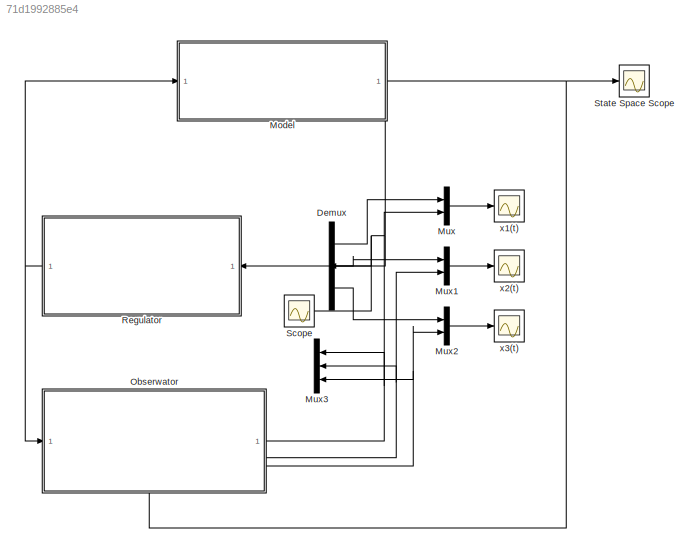
MODEL slx_71d1992885e4
KIND model
CONFIG AbsTol = auto
CONFIG EnableMultiTasking = off
CONFIG FixedStep = auto
CONFIG InitFcn = simulation_setup
CONFIG MaxStep = auto
CONFIG MinStep = auto
CONFIG RelTol = 1e-3
CONFIG SampleTimeConstraint = Unconstrained
CONFIG SolverName = VariableStepAuto
CONFIG StartTime = 0.0
CONFIG StopTime = t_fin
BLOCK [Demux] Demux
  Outputs = 3
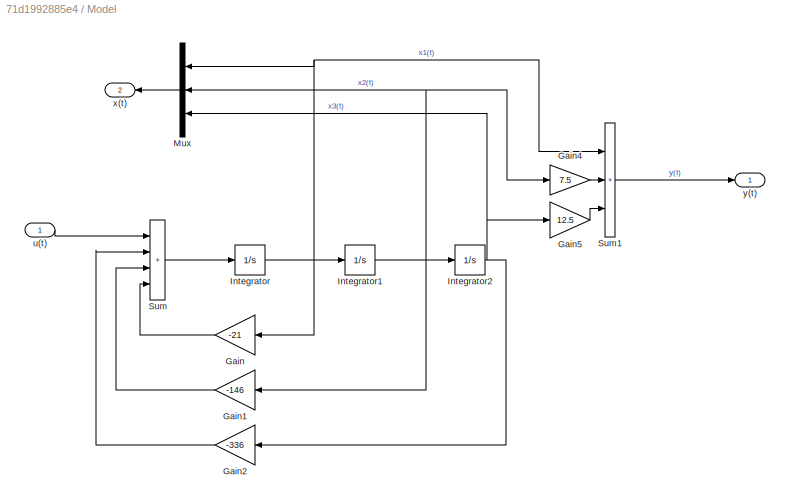
BLOCK [SubSystem] Model
  NameLocation = top
  PortSchema = {"entries":[{"content":{"sides":[{"content":{"connectorIds":["In1"]},"type":"ConnectorPlacement.EquallySpacedRectSide","uuid":"005622f6-1dbe-4fa8-b059-9458e8899b96"},{"content":{"connectorIds":["Out1"],"side":"RIGHT"},"type":"ConnectorPlacement.EquallySpacedRectSide","uuid":"7350b0ed-336f-40bc-b296-6ad5a9a87142"},{"content":{"side":"TOP"},"type":"ConnectorPlacement.EquallySpacedRectSide","uuid":"4...<+372ch>
BLOCK [Gain] Model/Gain
  Gain = -21
  NameLocation = top
BLOCK [Gain] Model/Gain1
  Gain = -146
  NameLocation = top
BLOCK [Gain] Model/Gain2
  Gain = -336
  NameLocation = top
BLOCK [Gain] Model/Gain4
  Gain = 7.5
BLOCK [Gain] Model/Gain5
  Gain = 12.5
BLOCK [Integrator] Model/Integrator
  InitialCondition = x_0(1)
BLOCK [Integrator] Model/Integrator1
  InitialCondition = x_0(2)
BLOCK [Integrator] Model/Integrator2
  InitialCondition = x_0(3)
BLOCK [Mux] Model/Mux
  DisplayOption = bar
  Inputs = 3
  NameLocation = top
BLOCK [Sum] Model/Sum
  IconShape = rectangular
  Inputs = ++++
BLOCK [Sum] Model/Sum1
  IconShape = rectangular
  Inputs = +++
BLOCK [Inport] Model/u(t)
BLOCK [Outport] Model/x(t)
  NameLocation = top
  Port = 2
BLOCK [Outport] Model/y(t)
BLOCK [Mux] Mux
  DisplayOption = bar
  Inputs = 2
BLOCK [Mux] Mux1
  DisplayOption = bar
  Inputs = 2
BLOCK [Mux] Mux2
  DisplayOption = bar
  Inputs = 2
BLOCK [Mux] Mux3
  DisplayOption = bar
  Inputs = 3
  NameLocation = top
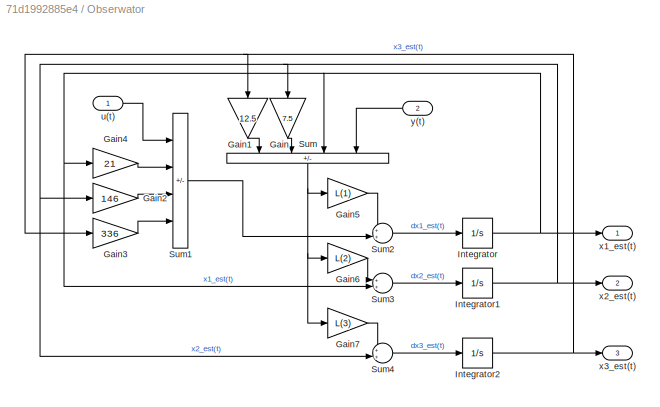
BLOCK [SubSystem] Obserwator
  PortSchema = {"entries":[{"content":{"sides":[{"content":{"connectorIds":["In1"]},"type":"ConnectorPlacement.EquallySpacedRectSide","uuid":"9b2ff53d-de87-4ad2-b26c-b465d32b1385"},{"content":{"connectorIds":["Out1","Out2","Out3"],"side":"RIGHT"},"type":"ConnectorPlacement.EquallySpacedRectSide","uuid":"d6ff340c-c8c1-46fc-9c57-2adcc79a8e31"},{"content":{"side":"TOP"},"type":"ConnectorPlacement.EquallySpacedRectS...<+385ch>
BLOCK [Gain] Obserwator/Gain
  Gain = 7.5
  NameLocation = left
BLOCK [Gain] Obserwator/Gain1
  Gain = 12.5
  NameLocation = left
BLOCK [Gain] Obserwator/Gain2
  Gain = 146
BLOCK [Gain] Obserwator/Gain3
  Gain = 336
BLOCK [Gain] Obserwator/Gain4
  Gain = 21
BLOCK [Gain] Obserwator/Gain5
  Gain = L(1)
BLOCK [Gain] Obserwator/Gain6
  Gain = L(2)
BLOCK [Gain] Obserwator/Gain7
  Gain = L(3)
BLOCK [Integrator] Obserwator/Integrator
  InitialCondition = xo_0(1)
BLOCK [Integrator] Obserwator/Integrator1
  InitialCondition = xo_0(2)
BLOCK [Integrator] Obserwator/Integrator2
  InitialCondition = xo_0(3)
BLOCK [Sum] Obserwator/Sum
  IconShape = rectangular
  Inputs = ---+
  NameLocation = left
BLOCK [Sum] Obserwator/Sum1
  IconShape = rectangular
  Inputs = +---
BLOCK [Sum] Obserwator/Sum2
  Inputs = ++|
BLOCK [Sum] Obserwator/Sum3
  Inputs = ++|
BLOCK [Sum] Obserwator/Sum4
  Inputs = ++|
BLOCK [Inport] Obserwator/u(t)
BLOCK [Outport] Obserwator/x1_est(t)
BLOCK [Outport] Obserwator/x2_est(t)
  Port = 2
BLOCK [Outport] Obserwator/x3_est(t)
  Port = 3
BLOCK [Inport] Obserwator/y(t)
  Port = 2
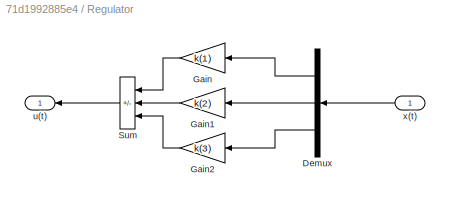
BLOCK [SubSystem] Regulator
  NameLocation = top
BLOCK [Demux] Regulator/Demux
  NameLocation = top
  Outputs = 3
BLOCK [Gain] Regulator/Gain
  Gain = k(1)
  NameLocation = top
BLOCK [Gain] Regulator/Gain1
  Gain = k(2)
  NameLocation = top
BLOCK [Gain] Regulator/Gain2
  Gain = k(3)
  NameLocation = top
BLOCK [Sum] Regulator/Sum
  IconShape = rectangular
  Inputs = ---
  NameLocation = top
BLOCK [Outport] Regulator/u(t)
  NameLocation = top
BLOCK [Inport] Regulator/x(t)
  NameLocation = top
BLOCK [Scope] Scope
  Floating = off
  NumInputPorts = 1
  ScopeSpecificationString = Simulink.scopes.TimeScopeBlockCfg('CurrentConfiguration', extmgr.ConfigurationSet(extmgr.Configuration('Core','General UI',true),extmgr.Configuration('Core','Source UI',true),extmgr.Configuration('Sources','WiredSimulink',true,'DataLoggingVariableName','ScopeData1'),extmgr.Configuration('Visuals','Time Domain',true,'SerializedDisplays',{struct('MinYLimReal','-89.83061','MaxYLimReal','42.82765','YL...<+1427ch>
BLOCK [Scope] State Space Scope
  Floating = off
  NumInputPorts = 1
  ScopeSpecificationString = Simulink.scopes.TimeScopeBlockCfg('CurrentConfiguration', extmgr.ConfigurationSet(extmgr.Configuration('Core','General UI',true),extmgr.Configuration('Core','Source UI',true),extmgr.Configuration('Sources','WiredSimulink',true,'DataLoggingVariableName','ScopeData1'),extmgr.Configuration('Visuals','Time Domain',true,'SerializedDisplays',{struct('MinYLimReal','-123.24384','MaxYLimReal','72.03898','Y...<+1409ch>
BLOCK [Scope] x1(t)
  Floating = off
  NumInputPorts = 1
  ScopeSpecificationString = Simulink.scopes.TimeScopeBlockCfg('CurrentConfiguration', extmgr.ConfigurationSet(extmgr.Configuration('Core','General UI',true),extmgr.Configuration('Core','Source UI',true),extmgr.Configuration('Sources','WiredSimulink',true,'DataLoggingVariableName','ScopeData1'),extmgr.Configuration('Visuals','Time Domain',true,'SerializedDisplays',{struct('MinYLimReal','-5.11588','MaxYLimReal','6.96922','YLab...<+1466ch>
BLOCK [Scope] x2(t)
  Floating = off
  NumInputPorts = 1
  ScopeSpecificationString = Simulink.scopes.TimeScopeBlockCfg('CurrentConfiguration', extmgr.ConfigurationSet(extmgr.Configuration('Core','General UI',true),extmgr.Configuration('Core','Source UI',true),extmgr.Configuration('Sources','WiredSimulink',true,'DataLoggingVariableName','ScopeData2'),extmgr.Configuration('Visuals','Time Domain',true,'SerializedDisplays',{struct('MinYLimReal','-1343.20355','MaxYLimReal','1160.47057'...<+1489ch>
BLOCK [Scope] x3(t)
  Floating = off
  NumInputPorts = 1
  ScopeSpecificationString = Simulink.scopes.TimeScopeBlockCfg('CurrentConfiguration', extmgr.ConfigurationSet(extmgr.Configuration('Core','General UI',true),extmgr.Configuration('Core','Source UI',true),extmgr.Configuration('Sources','WiredSimulink',true,'DataLoggingVariableName','ScopeData3'),extmgr.Configuration('Visuals','Time Domain',true,'SerializedDisplays',{struct('MinYLimReal','-221.39129','MaxYLimReal','268.44509','...<+1433ch>
LINE Demux:1 -> Mux:1
LINE Demux:2 -> Mux1:1
LINE Demux:3 -> Mux2:1
LINE Model/Gain1:1 -> Model/Sum:3
LINE Model/Gain2:1 -> Model/Sum:2
LINE Model/Gain4:1 -> Model/Sum1:2
LINE Model/Gain5:1 -> Model/Sum1:3
LINE Model/Gain:1 -> Model/Sum:4
NET Model/Integrator1:1 -> Model/Gain1:1, Model/Gain4:1, Model/Integrator2:1, Model/Mux:2
NET Model/Integrator2:1 -> Model/Gain2:1, Model/Gain5:1, Model/Mux:3
NET Model/Integrator:1 -> Model/Gain:1, Model/Integrator1:1, Model/Mux:1, Model/Sum1:1
LINE Model/Mux:1 -> Model/x(t):1
LINE Model/Sum1:1 -> Model/y(t):1
LINE Model/Sum:1 -> Model/Integrator:1
LINE Model/u(t):1 -> Model/Sum:1
NET Model:1 -> Obserwator:2, State Space Scope:1
NET Model:2 -> Demux:1, Regulator:1, Scope:1
LINE Mux1:1 -> x2(t):1
LINE Mux2:1 -> x3(t):1
LINE Mux:1 -> x1(t):1
LINE Obserwator/Gain1:1 -> Obserwator/Sum:1
LINE Obserwator/Gain2:1 -> Obserwator/Sum1:3
LINE Obserwator/Gain3:1 -> Obserwator/Sum1:4
LINE Obserwator/Gain4:1 -> Obserwator/Sum1:2
LINE Obserwator/Gain5:1 -> Obserwator/Sum2:1
LINE Obserwator/Gain6:1 -> Obserwator/Sum3:1
LINE Obserwator/Gain7:1 -> Obserwator/Sum4:1
LINE Obserwator/Gain:1 -> Obserwator/Sum:2
NET Obserwator/Integrator1:1 -> Obserwator/Gain2:1, Obserwator/Gain:1, Obserwator/Sum4:2, Obserwator/x2_est(t):1
NET Obserwator/Integrator2:1 -> Obserwator/Gain1:1, Obserwator/Gain3:1, Obserwator/x3_est(t):1
NET Obserwator/Integrator:1 -> Obserwator/Gain4:1, Obserwator/Sum3:2, Obserwator/Sum:3, Obserwator/x1_est(t):1
LINE Obserwator/Sum1:1 -> Obserwator/Sum2:2
LINE Obserwator/Sum2:1 -> Obserwator/Integrator:1
LINE Obserwator/Sum3:1 -> Obserwator/Integrator1:1
LINE Obserwator/Sum4:1 -> Obserwator/Integrator2:1
NET Obserwator/Sum:1 -> Obserwator/Gain5:1, Obserwator/Gain6:1, Obserwator/Gain7:1
LINE Obserwator/u(t):1 -> Obserwator/Sum1:1
LINE Obserwator/y(t):1 -> Obserwator/Sum:4
NET Obserwator:1 -> Mux3:1, Mux:2
NET Obserwator:2 -> Mux1:2, Mux3:2
NET Obserwator:3 -> Mux2:2, Mux3:3
LINE Regulator/Demux:1 -> Regulator/Gain:1
LINE Regulator/Demux:2 -> Regulator/Gain1:1
LINE Regulator/Demux:3 -> Regulator/Gain2:1
LINE Regulator/Gain1:1 -> Regulator/Sum:2
LINE Regulator/Gain2:1 -> Regulator/Sum:3
LINE Regulator/Gain:1 -> Regulator/Sum:1
LINE Regulator/Sum:1 -> Regulator/u(t):1
LINE Regulator/x(t):1 -> Regulator/Demux:1
NET Regulator:1 -> Model:1, Obserwator:1
note: NET lines group one-source signal fan-out (src -> all destinations, sorted); 1:1 wires keep LINE
